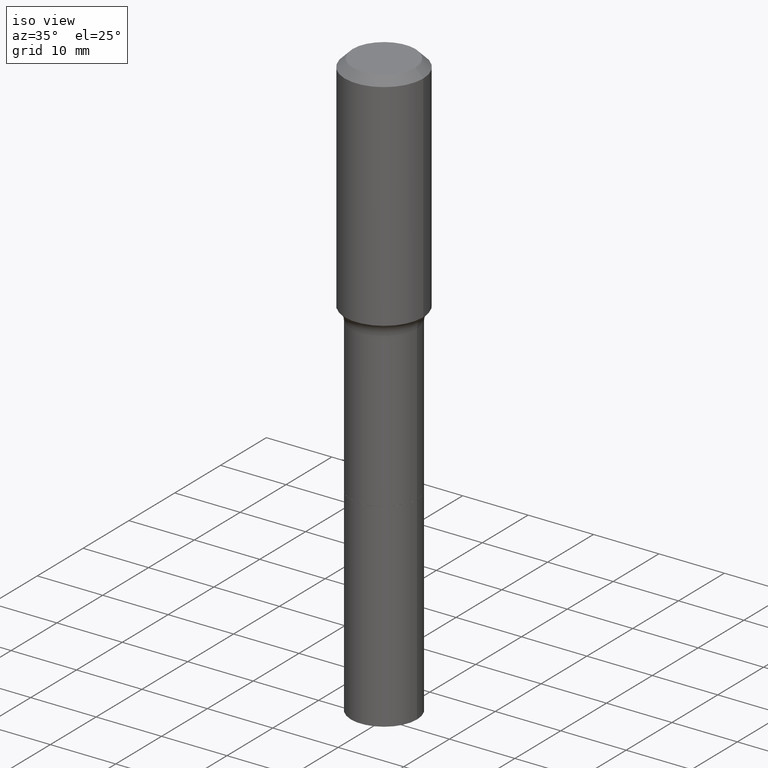
[diagram: clean part render]
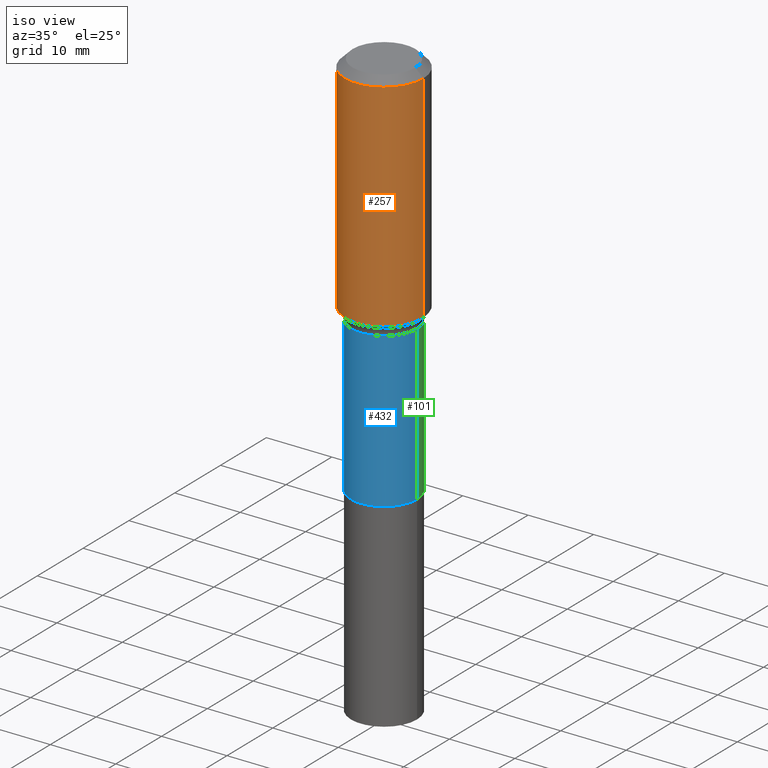
[diagram: same view with three faces highlighted in distinct colors, each labeled with its STEP entity id]
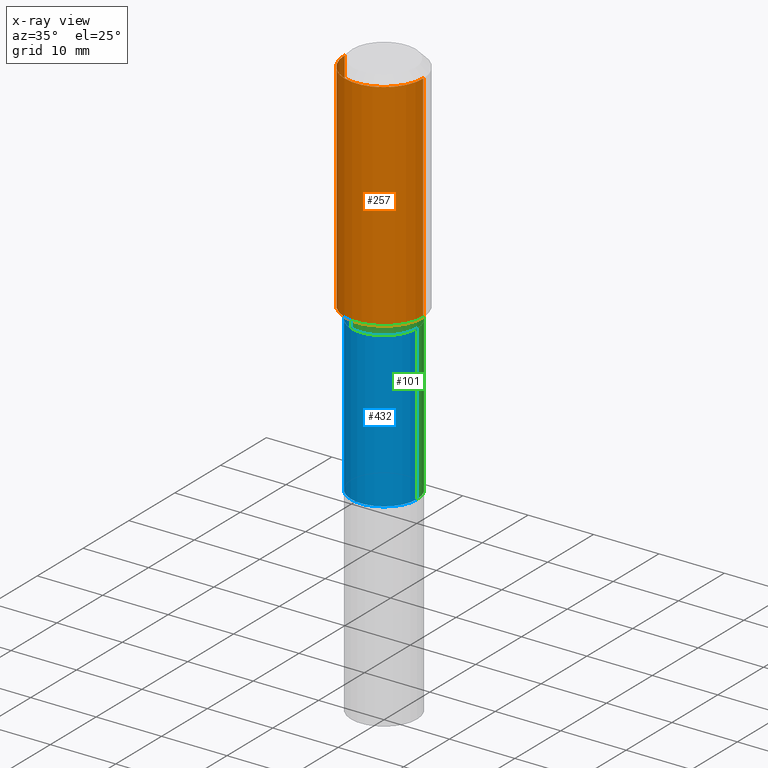
[diagram: x-ray of the same camera — body ghosted, the three highlighted faces saturated]
A machine part, iso view with three faces highlighted in distinct colors.
The next image is the same camera in x-ray (body ghosted, the three faces saturated) — at least one of them is partly hidden behind the body in this view.
Their STEP definitions:

[orange] entity #257 — the highlighted cylindrical surface (partial cylindrical patch) has radius 5.9995 mm, axis along (-0, 0, 1).
#10 = CARTESIAN_POINT ( 'NONE',  ( 0.000000000000000000, 0.000000000000000000, 0.000000000000000000 ) ) ;
#17 = DIRECTION ( 'NONE',  ( -2.445468806185136597E-29, 3.491481338843145583E-15, 1.000000000000000000 ) ) ;
#31 = VERTEX_POINT ( 'NONE', #32 ) ;
#32 = CARTESIAN_POINT ( 'NONE',  ( -0.2361999999999999933, -7.528145269900497156E-16, -0.04724000000000028870 ) ) ;
#60 = VECTOR ( 'NONE', #294, 39.37007874015748143 ) ;
#87 = DIRECTION ( 'NONE',  ( -2.445468806185136597E-29, 3.491481338843145583E-15, 1.000000000000000000 ) ) ;
#107 = EDGE_CURVE ( 'NONE', #514, #111, #250, .T. ) ;
#111 = VERTEX_POINT ( 'NONE', #466 ) ;
#119 = ORIENTED_EDGE ( 'NONE', *, *, #216, .T. ) ;
#138 = LINE ( 'NONE', #292, #457 ) ;
#185 = CIRCLE ( 'NONE', #218, 0.2362000000000001598 ) ;
#194 = EDGE_CURVE ( 'NONE', #31, #111, #426, .T. ) ;
#211 = DIRECTION ( 'NONE',  ( 1.000000000000000000, -6.982962677686268288E-15, 0.000000000000000000 ) ) ;
#216 = EDGE_CURVE ( 'NONE', #262, #514, #185, .T. ) ;
#218 = AXIS2_PLACEMENT_3D ( 'NONE', #496, #239, #211 ) ;
#231 = ORIENTED_EDGE ( 'NONE', *, *, #107, .T. ) ;
#239 = DIRECTION ( 'NONE',  ( -2.445468806185136597E-29, 3.491481338843145583E-15, 1.000000000000000000 ) ) ;
#250 = LINE ( 'NONE', #342, #60 ) ;
#257 = ADVANCED_FACE ( 'NONE', ( #412 ), #368, .T. ) ;
#262 = VERTEX_POINT ( 'NONE', #455 ) ;
#267 = AXIS2_PLACEMENT_3D ( 'NONE', #442, #87, #311 ) ;
#275 = DIRECTION ( 'NONE',  ( 1.000000000000000000, -6.982962677686266711E-15, 4.876176775795935793E-29 ) ) ;
#279 = AXIS2_PLACEMENT_3D ( 'NONE', #10, #17, #275 ) ;
#292 = CARTESIAN_POINT ( 'NONE',  ( -0.2362000000000000766, 1.678301941865357183E-15, -1.161852468318209177E-29 ) ) ;
#294 = DIRECTION ( 'NONE',  ( -2.445468806185136877E-29, 3.491481338843145188E-15, 1.000000000000000000 ) ) ;
#300 = ORIENTED_EDGE ( 'NONE', *, *, #194, .F. ) ;
#311 = DIRECTION ( 'NONE',  ( 1.000000000000000000, -6.982962677686266711E-15, 0.000000000000000000 ) ) ;
#342 = CARTESIAN_POINT ( 'NONE',  ( 0.2362000000000000766, -1.649375784469496722E-15, 1.151752954443000368E-29 ) ) ;
#368 = CYLINDRICAL_SURFACE ( 'NONE', #279, 0.2362000000000000766 ) ;
#369 = CARTESIAN_POINT ( 'NONE',  ( 0.2362000000000001598, -6.346671143733359211E-15, -1.345358861582873766 ) ) ;
#373 = DIRECTION ( 'NONE',  ( -2.445468806185136877E-29, 3.491481338843145188E-15, 1.000000000000000000 ) ) ;
#383 = EDGE_LOOP ( 'NONE', ( #440, #119, #231, #300 ) ) ;
#412 = FACE_OUTER_BOUND ( 'NONE', #383, .T. ) ;
#426 = CIRCLE ( 'NONE', #267, 0.2361999999999999933 ) ;
#440 = ORIENTED_EDGE ( 'NONE', *, *, #491, .F. ) ;
#442 = CARTESIAN_POINT ( 'NONE',  ( 1.155239464041865682E-30, -1.649375784469512105E-16, -0.04724000000000028870 ) ) ;
#455 = CARTESIAN_POINT ( 'NONE',  ( -0.2362000000000001598, -3.018993417398504319E-15, -1.345358861582873766 ) ) ;
#457 = VECTOR ( 'NONE', #373, 39.37007874015748143 ) ;
#466 = CARTESIAN_POINT ( 'NONE',  ( 0.2361999999999999933, -1.814313362916447440E-15, -0.04724000000000028870 ) ) ;
#491 = EDGE_CURVE ( 'NONE', #262, #31, #138, .T. ) ;
#496 = CARTESIAN_POINT ( 'NONE',  ( 3.290033129125664758E-29, -4.697295359263862685E-15, -1.345358861582873766 ) ) ;
#514 = VERTEX_POINT ( 'NONE', #369 ) ;

[blue] entity #432 — the highlighted cylindrical surface (partial cylindrical patch) has radius 5.0419 mm, axis along (-0, 0, 1).
#9 = AXIS2_PLACEMENT_3D ( 'NONE', #330, #334, #500 ) ;
#16 = LINE ( 'NONE', #178, #122 ) ;
#23 = CYLINDRICAL_SURFACE ( 'NONE', #9, 0.1985000000000000098 ) ;
#64 = DIRECTION ( 'NONE',  ( -2.445468806185136877E-29, 3.491481338843145188E-15, 1.000000000000000000 ) ) ;
#68 = DIRECTION ( 'NONE',  ( -2.445468806185136597E-29, 3.491481338843145583E-15, 1.000000000000000000 ) ) ;
#85 = VERTEX_POINT ( 'NONE', #225 ) ;
#90 = FACE_OUTER_BOUND ( 'NONE', #303, .T. ) ;
#106 = VERTEX_POINT ( 'NONE', #253 ) ;
#118 = VECTOR ( 'NONE', #401, 39.37007874015748143 ) ;
#122 = VECTOR ( 'NONE', #64, 39.37007874015748143 ) ;
#128 = DIRECTION ( 'NONE',  ( -2.445468806185136597E-29, 3.491481338843145583E-15, 1.000000000000000000 ) ) ;
#168 = EDGE_CURVE ( 'NONE', #85, #106, #387, .T. ) ;
#174 = CIRCLE ( 'NONE', #237, 0.1984999999999999543 ) ;
#175 = CARTESIAN_POINT ( 'NONE',  ( 5.736580725549092815E-29, -8.190316924658251154E-15, -2.345799999999999663 ) ) ;
#178 = CARTESIAN_POINT ( 'NONE',  ( -0.1985000000000000098, 1.410427330483798938E-15, -9.764086154155988574E-30 ) ) ;
#205 = EDGE_CURVE ( 'NONE', #106, #464, #235, .T. ) ;
#225 = CARTESIAN_POINT ( 'NONE',  ( -0.1985000000000000375, -5.158969382616521071E-15, -2.345799999999999663 ) ) ;
#235 = LINE ( 'NONE', #393, #118 ) ;
#237 = AXIS2_PLACEMENT_3D ( 'NONE', #452, #128, #278 ) ;
#240 = AXIS2_PLACEMENT_3D ( 'NONE', #175, #68, #258 ) ;
#253 = CARTESIAN_POINT ( 'NONE',  ( 0.1985000000000000375, -9.576435016178973897E-15, -2.345799999999999663 ) ) ;
#258 = DIRECTION ( 'NONE',  ( 1.000000000000000000, -6.982962677686265133E-15, 0.000000000000000000 ) ) ;
#278 = DIRECTION ( 'NONE',  ( 1.000000000000000000, -6.982962677686263555E-15, 0.000000000000000000 ) ) ;
#303 = EDGE_LOOP ( 'NONE', ( #516, #430, #512, #351 ) ) ;
#330 = CARTESIAN_POINT ( 'NONE',  ( 0.000000000000000000, 0.000000000000000000, 0.000000000000000000 ) ) ;
#334 = DIRECTION ( 'NONE',  ( -2.445468806185136597E-29, 3.491481338843145583E-15, 1.000000000000000000 ) ) ;
#340 = EDGE_CURVE ( 'NONE', #431, #464, #174, .T. ) ;
#351 = ORIENTED_EDGE ( 'NONE', *, *, #340, .F. ) ;
#361 = CARTESIAN_POINT ( 'NONE',  ( -0.1984999999999999543, -5.158969382616521071E-15, -1.417300000000000004 ) ) ;
#387 = CIRCLE ( 'NONE', #240, 0.1985000000000000375 ) ;
#393 = CARTESIAN_POINT ( 'NONE',  ( 0.1985000000000000098, -1.386118091520723926E-15, 9.679210899954933278E-30 ) ) ;
#401 = DIRECTION ( 'NONE',  ( -2.445468806185136877E-29, 3.491481338843145188E-15, 1.000000000000000000 ) ) ;
#418 = CARTESIAN_POINT ( 'NONE',  ( 0.1984999999999999543, -6.334594593063113185E-15, -1.417300000000000004 ) ) ;
#430 = ORIENTED_EDGE ( 'NONE', *, *, #168, .T. ) ;
#431 = VERTEX_POINT ( 'NONE', #361 ) ;
#432 = ADVANCED_FACE ( 'NONE', ( #90 ), #23, .T. ) ;
#452 = CARTESIAN_POINT ( 'NONE',  ( 3.465962939006193759E-29, -4.948476501542390442E-15, -1.417300000000000004 ) ) ;
#464 = VERTEX_POINT ( 'NONE', #418 ) ;
#480 = EDGE_CURVE ( 'NONE', #85, #431, #16, .T. ) ;
#500 = DIRECTION ( 'NONE',  ( 1.000000000000000000, -6.982962677686265922E-15, 4.876176775795935793E-29 ) ) ;
#512 = ORIENTED_EDGE ( 'NONE', *, *, #205, .T. ) ;
#516 = ORIENTED_EDGE ( 'NONE', *, *, #480, .F. ) ;

[green] entity #101 — the highlighted cylindrical surface (partial cylindrical patch) has radius 5.0419 mm, axis along (-0, 0, 1).
#16 = LINE ( 'NONE', #178, #122 ) ;
#59 = DIRECTION ( 'NONE',  ( 1.000000000000000000, -6.982962677686265133E-15, 0.000000000000000000 ) ) ;
#64 = DIRECTION ( 'NONE',  ( -2.445468806185136877E-29, 3.491481338843145188E-15, 1.000000000000000000 ) ) ;
#82 = DIRECTION ( 'NONE',  ( -2.445468806185136597E-29, 3.491481338843145583E-15, 1.000000000000000000 ) ) ;
#85 = VERTEX_POINT ( 'NONE', #225 ) ;
#101 = ADVANCED_FACE ( 'NONE', ( #198 ), #298, .T. ) ;
#106 = VERTEX_POINT ( 'NONE', #253 ) ;
#108 = DIRECTION ( 'NONE',  ( 1.000000000000000000, -6.982962677686263555E-15, 0.000000000000000000 ) ) ;
#118 = VECTOR ( 'NONE', #401, 39.37007874015748143 ) ;
#122 = VECTOR ( 'NONE', #64, 39.37007874015748143 ) ;
#151 = EDGE_CURVE ( 'NONE', #464, #431, #435, .T. ) ;
#178 = CARTESIAN_POINT ( 'NONE',  ( -0.1985000000000000098, 1.410427330483798938E-15, -9.764086154155988574E-30 ) ) ;
#196 = EDGE_LOOP ( 'NONE', ( #391, #268, #219, #269 ) ) ;
#198 = FACE_OUTER_BOUND ( 'NONE', #196, .T. ) ;
#205 = EDGE_CURVE ( 'NONE', #106, #464, #235, .T. ) ;
#212 = CARTESIAN_POINT ( 'NONE',  ( 3.465962939006193759E-29, -4.948476501542390442E-15, -1.417300000000000004 ) ) ;
#213 = CIRCLE ( 'NONE', #513, 0.1985000000000000375 ) ;
#219 = ORIENTED_EDGE ( 'NONE', *, *, #151, .F. ) ;
#225 = CARTESIAN_POINT ( 'NONE',  ( -0.1985000000000000375, -5.158969382616521071E-15, -2.345799999999999663 ) ) ;
#235 = LINE ( 'NONE', #393, #118 ) ;
#253 = CARTESIAN_POINT ( 'NONE',  ( 0.1985000000000000375, -9.576435016178973897E-15, -2.345799999999999663 ) ) ;
#268 = ORIENTED_EDGE ( 'NONE', *, *, #480, .T. ) ;
#269 = ORIENTED_EDGE ( 'NONE', *, *, #205, .F. ) ;
#295 = DIRECTION ( 'NONE',  ( -2.445468806185136597E-29, 3.491481338843145583E-15, 1.000000000000000000 ) ) ;
#298 = CYLINDRICAL_SURFACE ( 'NONE', #317, 0.1985000000000000098 ) ;
#299 = DIRECTION ( 'NONE',  ( 1.000000000000000000, -6.982962677686265922E-15, 4.876176775795935793E-29 ) ) ;
#317 = AXIS2_PLACEMENT_3D ( 'NONE', #511, #82, #299 ) ;
#361 = CARTESIAN_POINT ( 'NONE',  ( -0.1984999999999999543, -5.158969382616521071E-15, -1.417300000000000004 ) ) ;
#375 = DIRECTION ( 'NONE',  ( -2.445468806185136597E-29, 3.491481338843145583E-15, 1.000000000000000000 ) ) ;
#391 = ORIENTED_EDGE ( 'NONE', *, *, #437, .T. ) ;
#393 = CARTESIAN_POINT ( 'NONE',  ( 0.1985000000000000098, -1.386118091520723926E-15, 9.679210899954933278E-30 ) ) ;
#401 = DIRECTION ( 'NONE',  ( -2.445468806185136877E-29, 3.491481338843145188E-15, 1.000000000000000000 ) ) ;
#409 = CARTESIAN_POINT ( 'NONE',  ( 5.736580725549092815E-29, -8.190316924658251154E-15, -2.345799999999999663 ) ) ;
#415 = AXIS2_PLACEMENT_3D ( 'NONE', #212, #375, #108 ) ;
#418 = CARTESIAN_POINT ( 'NONE',  ( 0.1984999999999999543, -6.334594593063113185E-15, -1.417300000000000004 ) ) ;
#431 = VERTEX_POINT ( 'NONE', #361 ) ;
#435 = CIRCLE ( 'NONE', #415, 0.1984999999999999543 ) ;
#437 = EDGE_CURVE ( 'NONE', #106, #85, #213, .T. ) ;
#464 = VERTEX_POINT ( 'NONE', #418 ) ;
#480 = EDGE_CURVE ( 'NONE', #85, #431, #16, .T. ) ;
#511 = CARTESIAN_POINT ( 'NONE',  ( 0.000000000000000000, 0.000000000000000000, 0.000000000000000000 ) ) ;
#513 = AXIS2_PLACEMENT_3D ( 'NONE', #409, #295, #59 ) ;